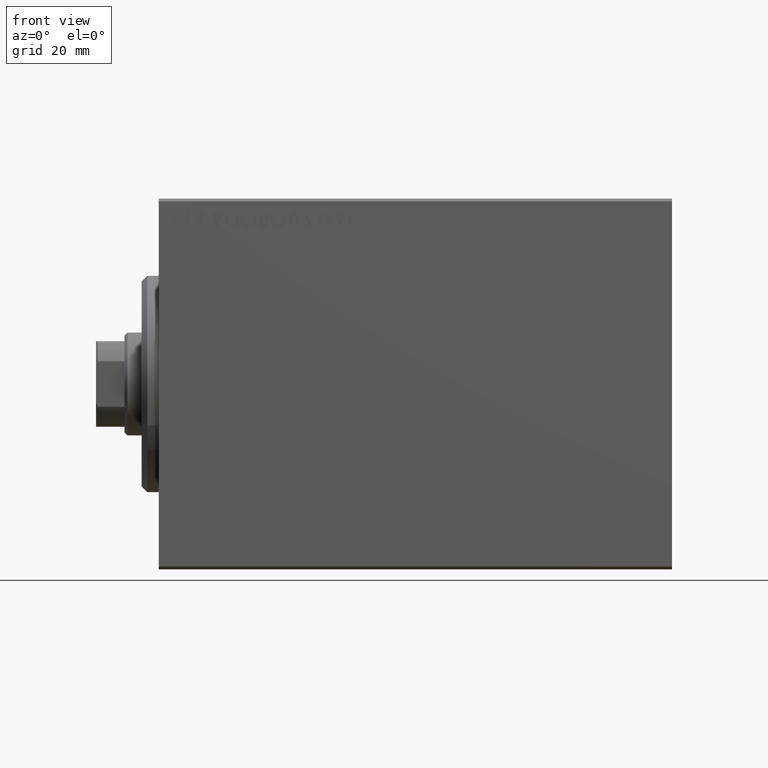
[diagram: clean part render]
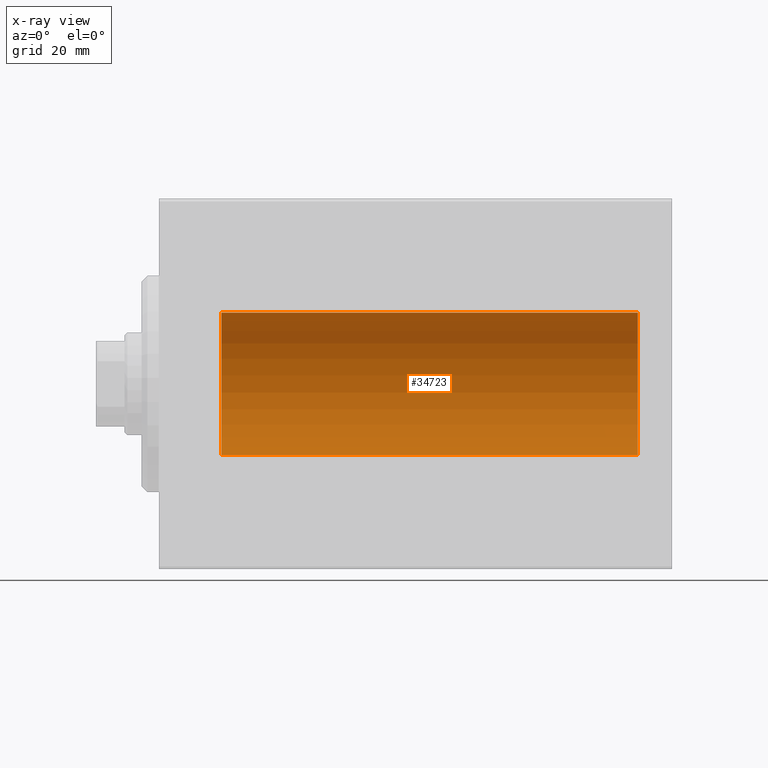
[diagram: x-ray — body ghosted, one internal face saturated and labeled with its STEP entity id]
A machine part, front view, then the same camera in x-ray: the body is ghosted and one INTERNAL B-rep face — a face not visible from any outside direction — is saturated and labeled: STEP entity #34723.
In plain terms, the highlighted cylindrical surface (partial cylindrical patch) has radius 12.5 mm, axis along (-1, -0, -0).
Its self-contained STEP definition (entity closure, byte-faithful):
#549 = ORIENTED_EDGE ( 'NONE', *, *, #25315, .T. ) ;
#2093 = CYLINDRICAL_SURFACE ( 'NONE', #4429, 12.50000000000000000 ) ;
#2097 = AXIS2_PLACEMENT_3D ( 'NONE', #10679, #10904, #24414 ) ;
#2316 = VERTEX_POINT ( 'NONE', #18223 ) ;
#2406 = CARTESIAN_POINT ( 'NONE',  ( 10.99999999999999645, 0.000000000000000000, 12.50000000000000000 ) ) ;
#4370 = CARTESIAN_POINT ( 'NONE',  ( 84.00000000000000000, 0.000000000000000000, 12.50000000000000000 ) ) ;
#4429 = AXIS2_PLACEMENT_3D ( 'NONE', #39319, #9419, #12749 ) ;
#6904 = ORIENTED_EDGE ( 'NONE', *, *, #26689, .T. ) ;
#9335 = DIRECTION ( 'NONE',  ( 0.000000000000000000, 0.000000000000000000, 1.000000000000000000 ) ) ;
#9419 = DIRECTION ( 'NONE',  ( -1.000000000000000000, -0.000000000000000000, -0.000000000000000000 ) ) ;
#10679 = CARTESIAN_POINT ( 'NONE',  ( 10.99999999999999645, 0.000000000000000000, 0.000000000000000000 ) ) ;
#10904 = DIRECTION ( 'NONE',  ( -1.000000000000000000, 0.000000000000000000, 0.000000000000000000 ) ) ;
#12525 = CARTESIAN_POINT ( 'NONE',  ( 84.00000000000000000, 1.530808498934191127E-15, -12.50000000000000000 ) ) ;
#12532 = VECTOR ( 'NONE', #24968, 1000.000000000000000 ) ;
#12749 = DIRECTION ( 'NONE',  ( 0.000000000000000000, 0.000000000000000000, 1.000000000000000000 ) ) ;
#12782 = EDGE_CURVE ( 'NONE', #34718, #2316, #42234, .T. ) ;
#15706 = ORIENTED_EDGE ( 'NONE', *, *, #18709, .F. ) ;
#16050 = FACE_OUTER_BOUND ( 'NONE', #40799, .T. ) ;
#18223 = CARTESIAN_POINT ( 'NONE',  ( 10.99999999999999645, 1.530808498934191127E-15, -12.50000000000000000 ) ) ;
#18709 = EDGE_CURVE ( 'NONE', #39297, #34718, #36718, .T. ) ;
#19055 = VERTEX_POINT ( 'NONE', #2406 ) ;
#24414 = DIRECTION ( 'NONE',  ( 0.000000000000000000, 0.000000000000000000, 1.000000000000000000 ) ) ;
#24762 = DIRECTION ( 'NONE',  ( -1.000000000000000000, -0.000000000000000000, -0.000000000000000000 ) ) ;
#24968 = DIRECTION ( 'NONE',  ( -1.000000000000000000, -0.000000000000000000, -0.000000000000000000 ) ) ;
#25315 = EDGE_CURVE ( 'NONE', #39297, #19055, #28083, .T. ) ;
#26689 = EDGE_CURVE ( 'NONE', #19055, #2316, #40346, .T. ) ;
#28083 = LINE ( 'NONE', #4370, #43127 ) ;
#28953 = CARTESIAN_POINT ( 'NONE',  ( 84.00000000000000000, 1.530808498934191127E-15, -12.50000000000000000 ) ) ;
#33288 = CARTESIAN_POINT ( 'NONE',  ( 84.00000000000000000, 0.000000000000000000, 12.50000000000000000 ) ) ;
#34718 = VERTEX_POINT ( 'NONE', #12525 ) ;
#34723 = ADVANCED_FACE ( 'NONE', ( #16050 ), #2093, .F. ) ;
#35982 = AXIS2_PLACEMENT_3D ( 'NONE', #43435, #39678, #9335 ) ;
#36718 = CIRCLE ( 'NONE', #35982, 12.50000000000000000 ) ;
#39297 = VERTEX_POINT ( 'NONE', #33288 ) ;
#39319 = CARTESIAN_POINT ( 'NONE',  ( 84.00000000000000000, 0.000000000000000000, 0.000000000000000000 ) ) ;
#39516 = ORIENTED_EDGE ( 'NONE', *, *, #12782, .F. ) ;
#39678 = DIRECTION ( 'NONE',  ( -1.000000000000000000, 0.000000000000000000, 0.000000000000000000 ) ) ;
#40346 = CIRCLE ( 'NONE', #2097, 12.50000000000000000 ) ;
#40799 = EDGE_LOOP ( 'NONE', ( #39516, #15706, #549, #6904 ) ) ;
#42234 = LINE ( 'NONE', #28953, #12532 ) ;
#43127 = VECTOR ( 'NONE', #24762, 1000.000000000000000 ) ;
#43435 = CARTESIAN_POINT ( 'NONE',  ( 84.00000000000000000, 0.000000000000000000, 0.000000000000000000 ) ) ;